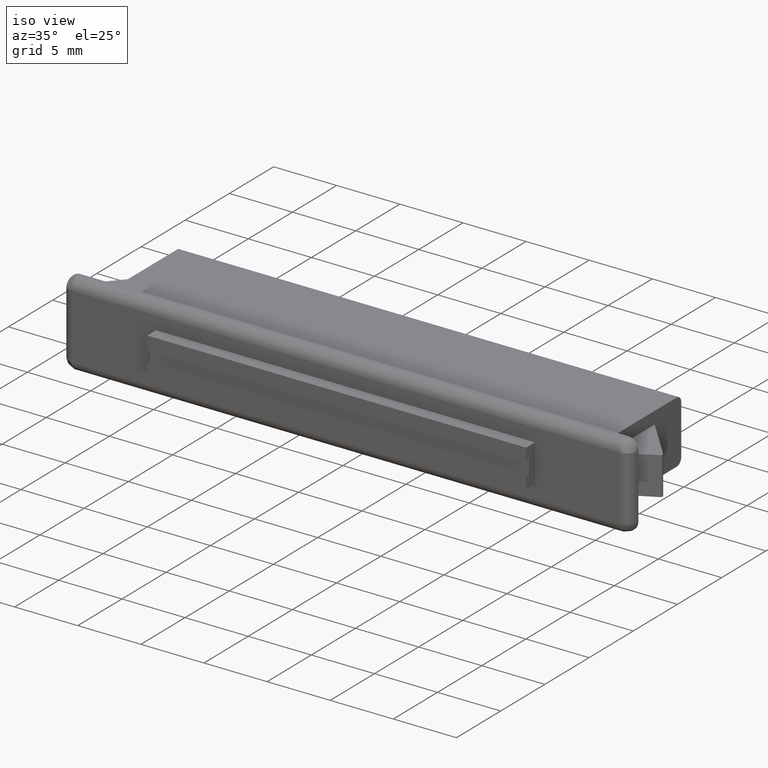
[diagram: clean part render]
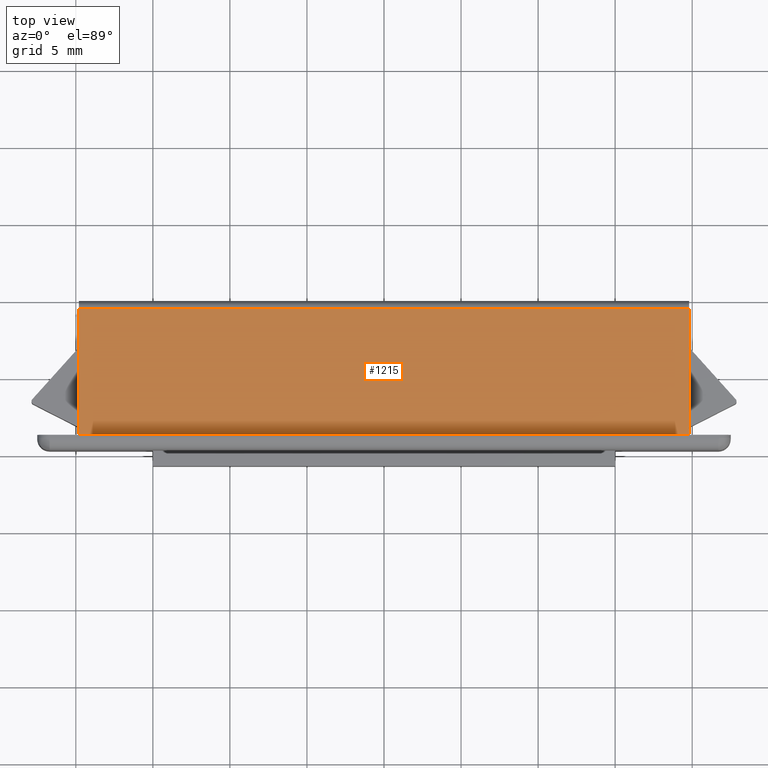
[diagram: tour spotlight — one face highlighted and labeled with its STEP entity id]
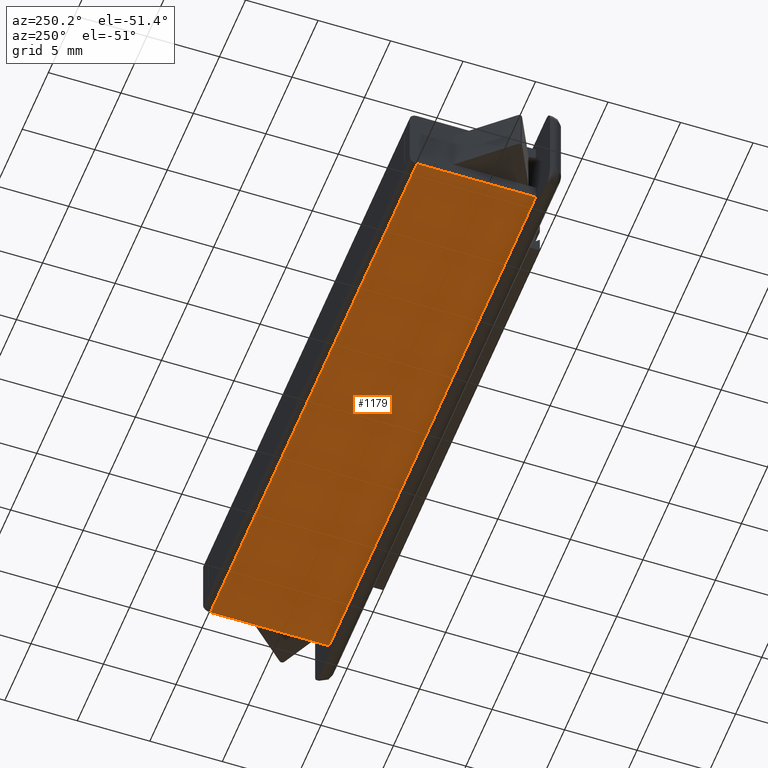
[diagram: tour spotlight — one face highlighted and labeled with its STEP entity id]
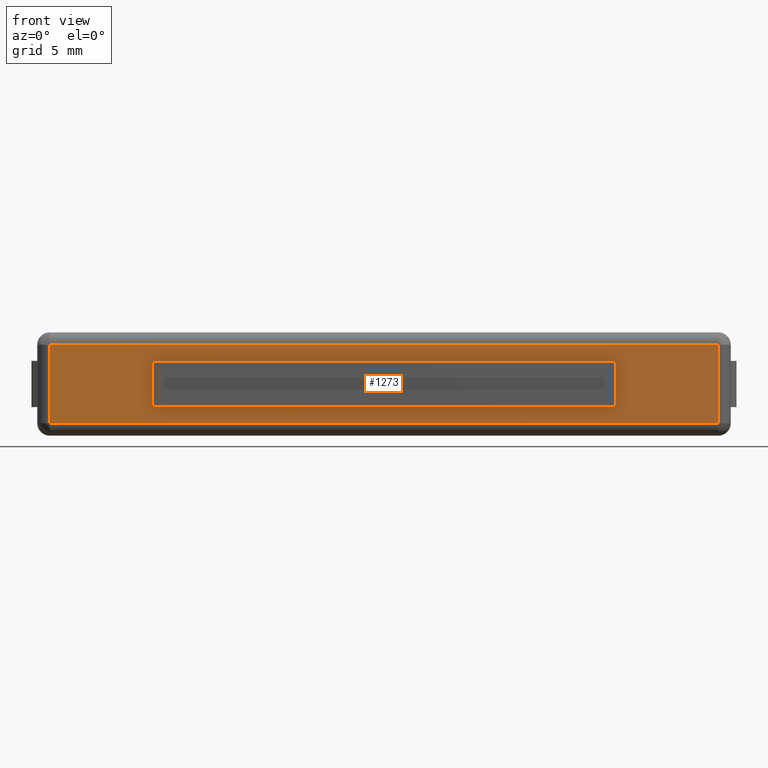
[diagram: tour spotlight — one face highlighted and labeled with its STEP entity id]
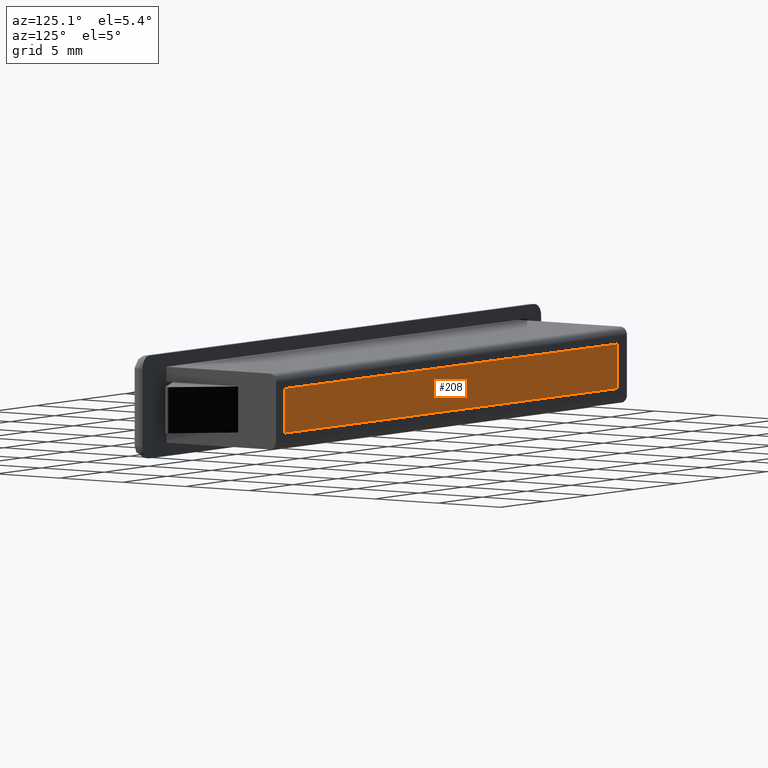
[diagram: tour spotlight — one face highlighted and labeled with its STEP entity id]
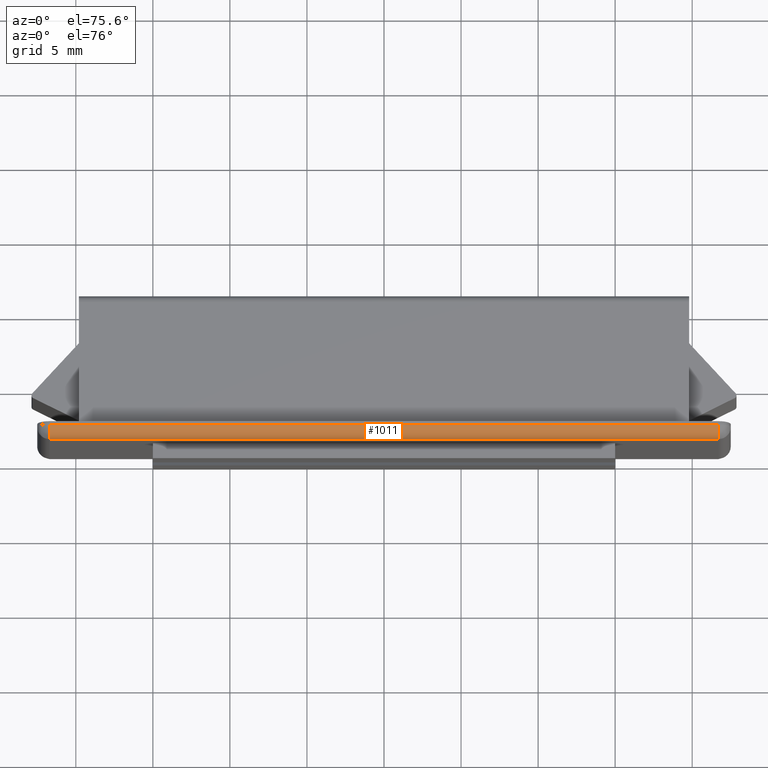
[diagram: tour spotlight — one face highlighted and labeled with its STEP entity id]
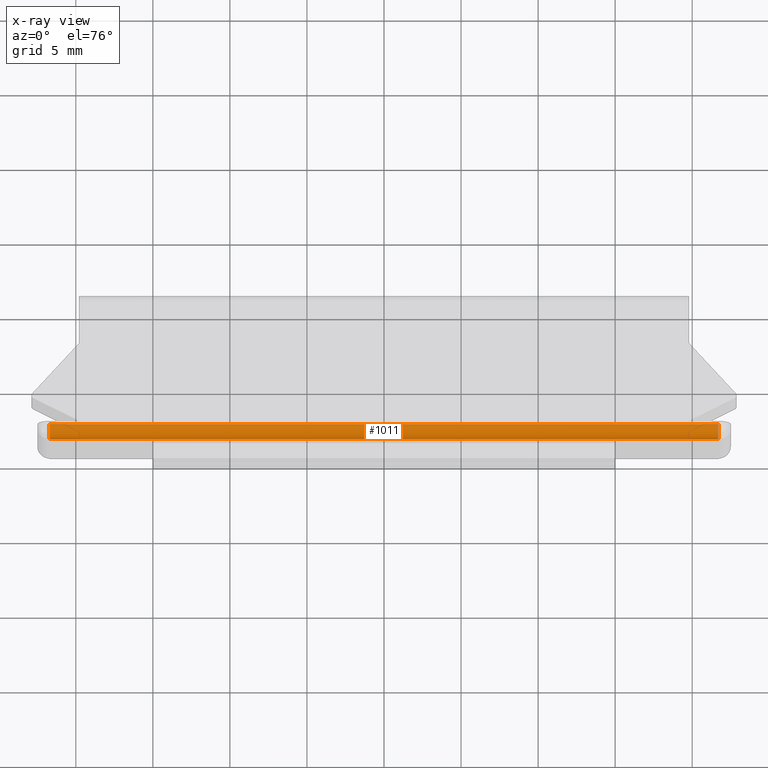
[diagram: x-ray of the same camera — body ghosted, this tour face saturated]
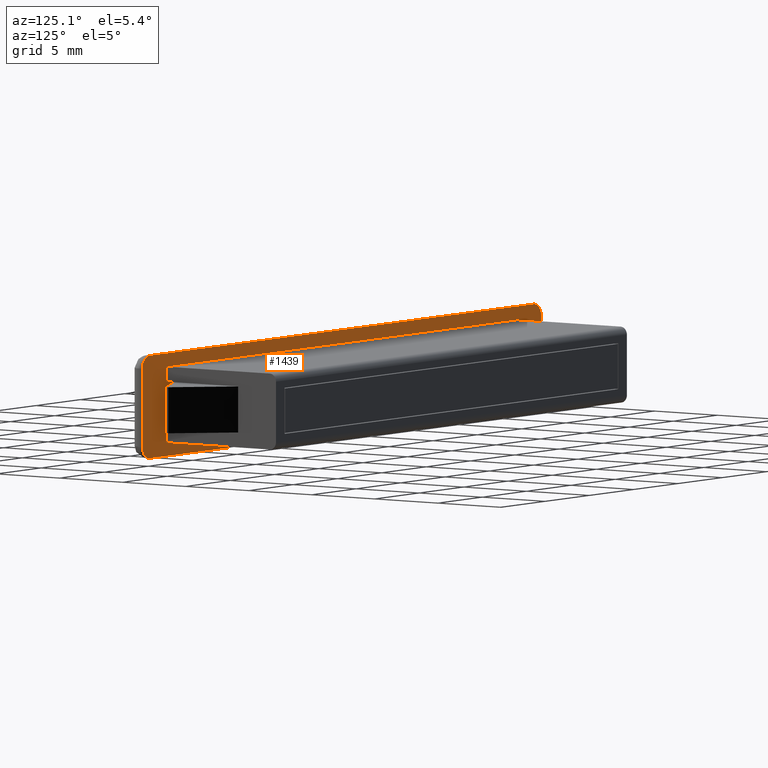
[diagram: tour spotlight — one face highlighted and labeled with its STEP entity id]
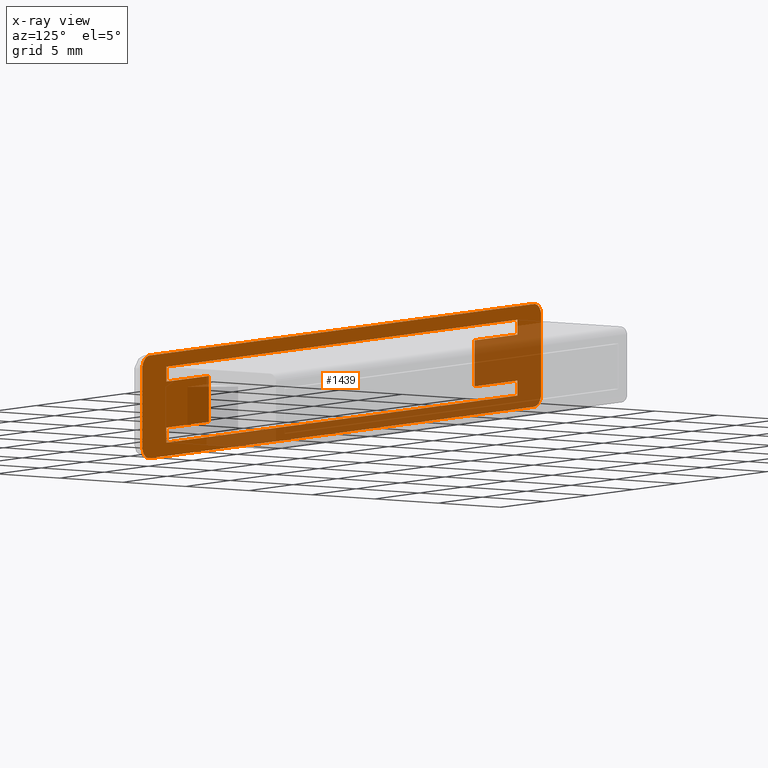
[diagram: x-ray of the same camera — body ghosted, this tour face saturated]
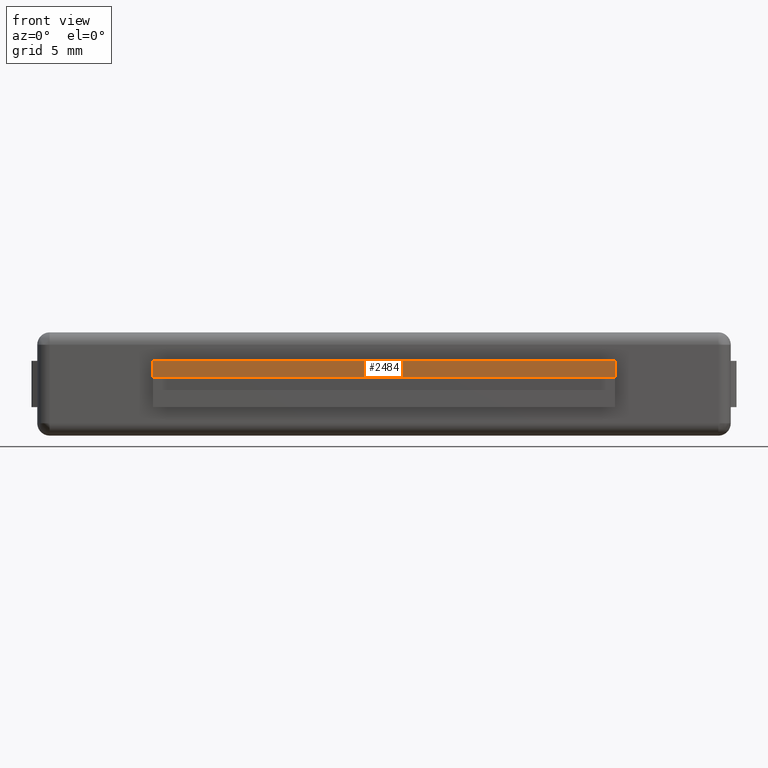
[diagram: tour spotlight — one face highlighted and labeled with its STEP entity id]
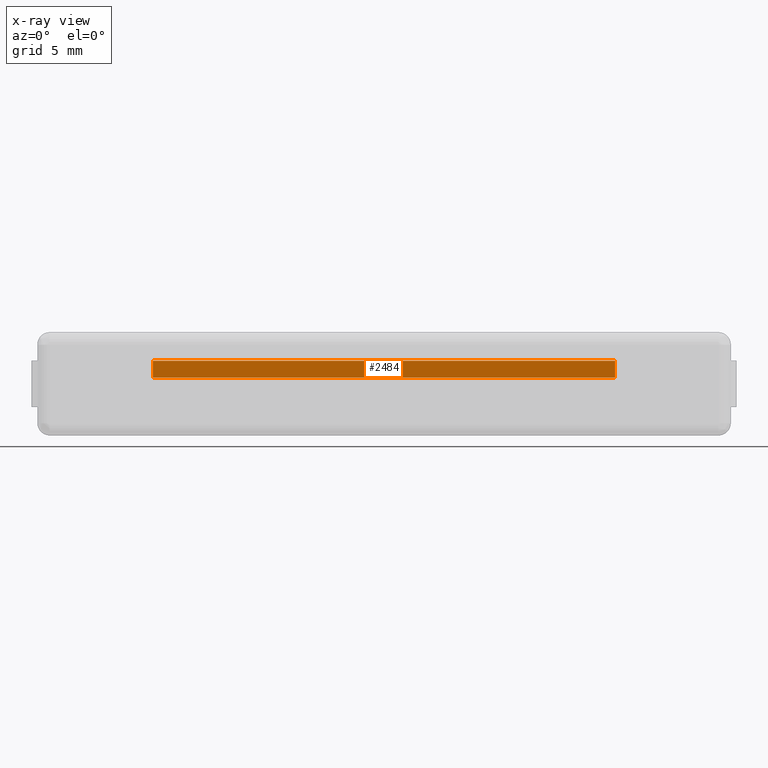
[diagram: x-ray of the same camera — body ghosted, this tour face saturated]
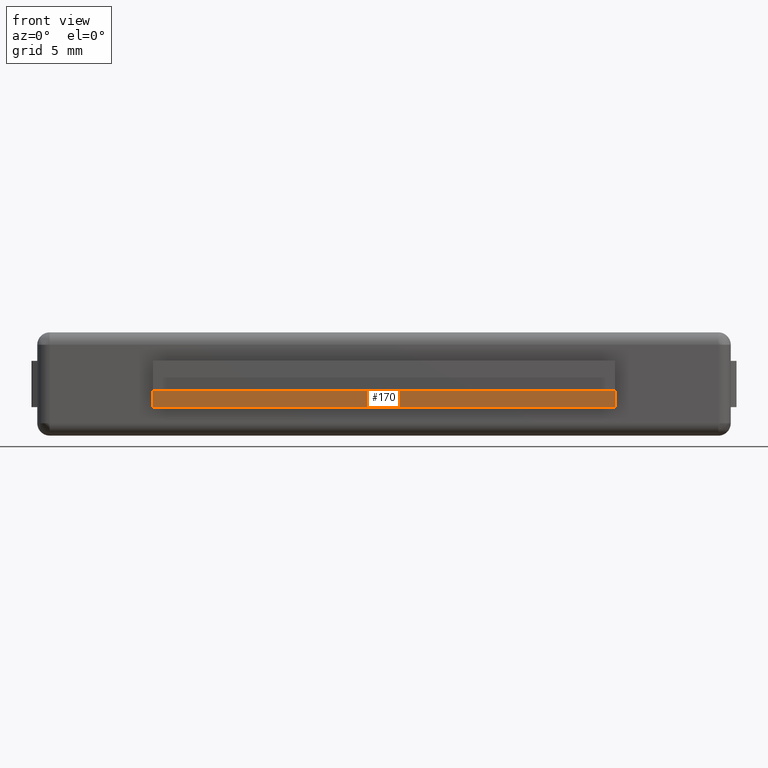
[diagram: tour spotlight — one face highlighted and labeled with its STEP entity id]
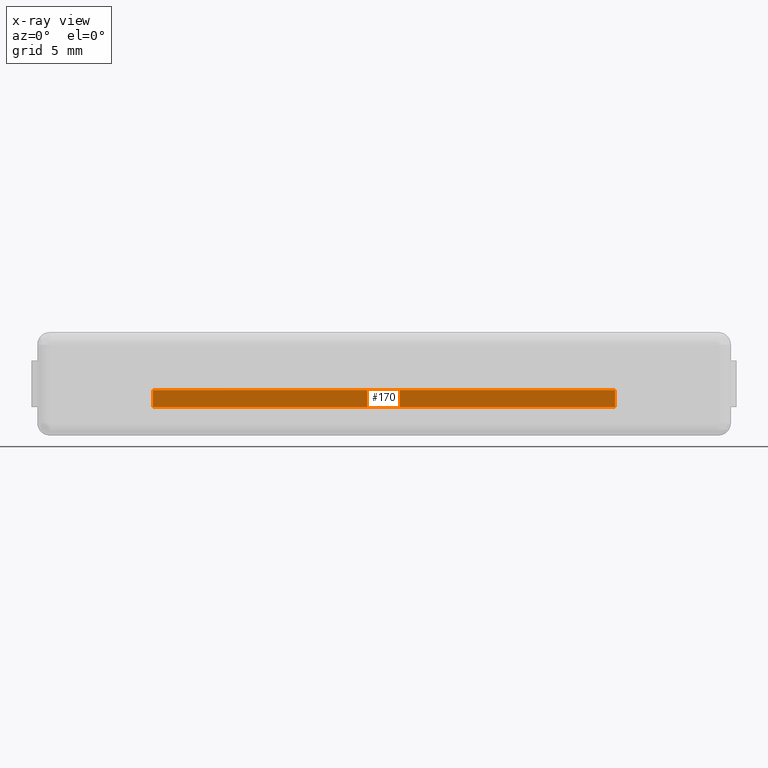
[diagram: x-ray of the same camera — body ghosted, this tour face saturated]
A machine part: a face-by-face anatomy tour. The part has 80 B-rep faces; the first image is the clean iso view, then the 8 largest visible faces are spotlighted one at a time (largest first), each with its STEP entity span.

Face 1 — top view, entity #1215. In plain terms, the highlighted face is a freeform B-spline surface patch.
Definition (entity closure, byte-faithful):
#1180=CARTESIAN_POINT('',(-21.778019923247520,-9.109589984106808,2.475000000000000));
#1181=CARTESIAN_POINT('',(21.778020985402289,-9.109589984106808,2.475000000000000));
#1182=CARTESIAN_POINT('',(-21.778019923247520,-0.090409795952053,2.475000000000000));
#1183=CARTESIAN_POINT('',(21.778020985402289,-0.090409795952053,2.475000000000000));
#1184=B_SPLINE_SURFACE_WITH_KNOTS('',1,1,((#1180,#1182),(#1181,#1183)),.UNSPECIFIED.,.F.,.F.,.U.,(2,2),(2,2),(0.0,43.556040908649813),(0.0,9.019180188154754),.UNSPECIFIED.);
#1185=CARTESIAN_POINT('',(19.800000000000001,-0.500000000000000,2.475000000000000));
#1186=VERTEX_POINT('',#1185);
#1187=CARTESIAN_POINT('',(19.800000000000001,-8.699999999999999,2.475000000000000));
#1188=VERTEX_POINT('',#1187);
#1189=CARTESIAN_POINT('',(19.800000000000001,-0.500000000000000,2.475000000000000));
#1190=CARTESIAN_POINT('',(19.800000000000001,-8.699999999999999,2.475000000000000));
#1191=QUASI_UNIFORM_CURVE('',1,(#1189,#1190),.UNSPECIFIED.,.F.,.U.);
#1192=EDGE_CURVE('',#1186,#1188,#1191,.T.);
#1193=ORIENTED_EDGE('',*,*,#1192,.F.);
#1194=CARTESIAN_POINT('',(-19.800000000000001,-0.500000000000000,2.475000000000000));
#1195=VERTEX_POINT('',#1194);
#1196=CARTESIAN_POINT('',(19.800000000000001,-0.500000000000000,2.475000000000000));
#1197=CARTESIAN_POINT('',(-19.800000000000001,-0.500000000000000,2.475000000000000));
#1198=QUASI_UNIFORM_CURVE('',1,(#1196,#1197),.UNSPECIFIED.,.F.,.U.);
#1199=EDGE_CURVE('',#1186,#1195,#1198,.T.);
#1200=ORIENTED_EDGE('',*,*,#1199,.T.);
#1201=CARTESIAN_POINT('',(-19.800000000000001,-8.699999999999999,2.475000000000000));
#1202=VERTEX_POINT('',#1201);
#1203=CARTESIAN_POINT('',(-19.800000000000001,-0.500000000000000,2.475000000000000));
#1204=CARTESIAN_POINT('',(-19.800000000000001,-8.699999999999999,2.475000000000000));
#1205=QUASI_UNIFORM_CURVE('',1,(#1203,#1204),.UNSPECIFIED.,.F.,.U.);
#1206=EDGE_CURVE('',#1195,#1202,#1205,.T.);
#1207=ORIENTED_EDGE('',*,*,#1206,.T.);
#1208=CARTESIAN_POINT('',(-19.800000000000001,-8.699999999999999,2.475000000000000));
#1209=CARTESIAN_POINT('',(19.800000000000001,-8.699999999999999,2.475000000000000));
#1210=QUASI_UNIFORM_CURVE('',1,(#1208,#1209),.UNSPECIFIED.,.F.,.U.);
#1211=EDGE_CURVE('',#1202,#1188,#1210,.T.);
#1212=ORIENTED_EDGE('',*,*,#1211,.T.);
#1213=EDGE_LOOP('',(#1193,#1200,#1207,#1212));
#1214=FACE_OUTER_BOUND('',#1213,.T.);
#1215=ADVANCED_FACE('',(#1214),#1184,.T.);

Face 2 — auxiliary view, entity #1179. In plain terms, the highlighted face is a freeform B-spline surface patch.
Definition (entity closure, byte-faithful):
#1144=CARTESIAN_POINT('',(21.778019923247520,-9.109589984106808,-2.475000000000000));
#1145=CARTESIAN_POINT('',(-21.778020985402289,-9.109589984106808,-2.475000000000000));
#1146=CARTESIAN_POINT('',(21.778019923247520,-0.090409795952053,-2.475000000000000));
#1147=CARTESIAN_POINT('',(-21.778020985402289,-0.090409795952053,-2.475000000000000));
#1148=B_SPLINE_SURFACE_WITH_KNOTS('',1,1,((#1144,#1146),(#1145,#1147)),.UNSPECIFIED.,.F.,.F.,.U.,(2,2),(2,2),(0.0,43.556040908649813),(0.0,9.019180188154754),.UNSPECIFIED.);
#1149=CARTESIAN_POINT('',(-19.800000000000001,-8.699999999999999,-2.475000000000000));
#1150=VERTEX_POINT('',#1149);
#1151=CARTESIAN_POINT('',(-19.800000000000001,-0.500000000000000,-2.475000000000000));
#1152=VERTEX_POINT('',#1151);
#1153=CARTESIAN_POINT('',(-19.800000000000001,-8.699999999999999,-2.475000000000000));
#1154=CARTESIAN_POINT('',(-19.800000000000001,-0.500000000000000,-2.475000000000000));
#1155=QUASI_UNIFORM_CURVE('',1,(#1153,#1154),.UNSPECIFIED.,.F.,.U.);
#1156=EDGE_CURVE('',#1150,#1152,#1155,.T.);
#1157=ORIENTED_EDGE('',*,*,#1156,.T.);
#1158=CARTESIAN_POINT('',(19.800000000000001,-0.500000000000000,-2.475000000000000));
#1159=VERTEX_POINT('',#1158);
#1160=CARTESIAN_POINT('',(-19.800000000000001,-0.500000000000000,-2.475000000000000));
#1161=CARTESIAN_POINT('',(19.800000000000001,-0.500000000000000,-2.475000000000000));
#1162=QUASI_UNIFORM_CURVE('',1,(#1160,#1161),.UNSPECIFIED.,.F.,.U.);
#1163=EDGE_CURVE('',#1152,#1159,#1162,.T.);
#1164=ORIENTED_EDGE('',*,*,#1163,.T.);
#1165=CARTESIAN_POINT('',(19.800000000000001,-8.699999999999999,-2.475000000000000));
#1166=VERTEX_POINT('',#1165);
#1167=CARTESIAN_POINT('',(19.800000000000001,-8.699999999999999,-2.475000000000000));
#1168=CARTESIAN_POINT('',(19.800000000000001,-0.500000000000000,-2.475000000000000));
#1169=QUASI_UNIFORM_CURVE('',1,(#1167,#1168),.UNSPECIFIED.,.F.,.U.);
#1170=EDGE_CURVE('',#1166,#1159,#1169,.T.);
#1171=ORIENTED_EDGE('',*,*,#1170,.F.);
#1172=CARTESIAN_POINT('',(-19.800000000000001,-8.699999999999999,-2.475000000000000));
#1173=CARTESIAN_POINT('',(19.800000000000001,-8.699999999999999,-2.475000000000000));
#1174=QUASI_UNIFORM_CURVE('',1,(#1172,#1173),.UNSPECIFIED.,.F.,.U.);
#1175=EDGE_CURVE('',#1150,#1166,#1174,.T.);
#1176=ORIENTED_EDGE('',*,*,#1175,.F.);
#1177=EDGE_LOOP('',(#1157,#1164,#1171,#1176));
#1178=FACE_OUTER_BOUND('',#1177,.T.);
#1179=ADVANCED_FACE('',(#1178),#1148,.T.);

Face 3 — front view, entity #1273. In plain terms, the highlighted face is a freeform B-spline surface patch.
Definition (entity closure, byte-faithful):
#304=CARTESIAN_POINT('',(15.0,-9.700000000088689,-0.699999999999989));
#305=VERTEX_POINT('',#304);
#318=CARTESIAN_POINT('',(-15.0,-9.700000000088689,-0.699999999999989));
#319=VERTEX_POINT('',#318);
#410=CARTESIAN_POINT('',(15.0,-9.700000000088640,1.500000000000000));
#411=VERTEX_POINT('',#410);
#424=CARTESIAN_POINT('',(15.0,-9.700000000088689,0.700000000000017));
#425=VERTEX_POINT('',#424);
#431=CARTESIAN_POINT('',(15.0,-9.700000000088689,0.700000000000017));
#432=CARTESIAN_POINT('',(15.0,-9.700000000088640,1.500000000000000));
#433=QUASI_UNIFORM_CURVE('',1,(#431,#432),.UNSPECIFIED.,.F.,.U.);
#434=EDGE_CURVE('',#425,#411,#433,.T.);
#645=CARTESIAN_POINT('',(-21.699999999999999,-9.700000000088689,-2.550000000000110));
#646=VERTEX_POINT('',#645);
#693=CARTESIAN_POINT('',(21.699999999999999,-9.700000000088689,-2.550000000000110));
#694=VERTEX_POINT('',#693);
#708=CARTESIAN_POINT('',(-21.699999999999999,-9.700000000088689,-2.550000000000110));
#709=CARTESIAN_POINT('',(21.699999999999999,-9.700000000088689,-2.550000000000110));
#710=QUASI_UNIFORM_CURVE('',1,(#708,#709),.UNSPECIFIED.,.F.,.U.);
#711=EDGE_CURVE('',#646,#694,#710,.T.);
#736=CARTESIAN_POINT('',(-21.699999999999999,-9.700000000088689,2.549999999999880));
#737=VERTEX_POINT('',#736);
#759=CARTESIAN_POINT('',(-21.699999999999999,-9.700000000088689,2.549999999999880));
#760=CARTESIAN_POINT('',(-21.699999999999999,-9.700000000088689,-2.550000000000110));
#761=QUASI_UNIFORM_CURVE('',1,(#759,#760),.UNSPECIFIED.,.F.,.U.);
#762=EDGE_CURVE('',#737,#646,#761,.T.);
#940=CARTESIAN_POINT('',(21.699999999999999,-9.700000000088689,2.549999999999880));
#941=VERTEX_POINT('',#940);
#955=CARTESIAN_POINT('',(21.699999999999999,-9.700000000088689,-2.550000000000110));
#956=CARTESIAN_POINT('',(21.699999999999999,-9.700000000088689,2.549999999999880));
#957=QUASI_UNIFORM_CURVE('',1,(#955,#956),.UNSPECIFIED.,.F.,.U.);
#958=EDGE_CURVE('',#694,#941,#957,.T.);
#1004=CARTESIAN_POINT('',(21.699999999999999,-9.700000000088689,2.549999999999880));
#1005=CARTESIAN_POINT('',(-21.699999999999999,-9.700000000088689,2.549999999999880));
#1006=QUASI_UNIFORM_CURVE('',1,(#1004,#1005),.UNSPECIFIED.,.F.,.U.);
#1007=EDGE_CURVE('',#941,#737,#1006,.T.);
#1216=CARTESIAN_POINT('',(-23.867829915882378,-9.700000000088689,2.804744990115090));
#1217=CARTESIAN_POINT('',(23.867831079961089,-9.700000000088689,2.804744990115090));
#1218=CARTESIAN_POINT('',(-23.867829915882378,-9.700000000088689,-2.804745126907981));
#1219=CARTESIAN_POINT('',(23.867831079961089,-9.700000000088689,-2.804745126907981));
#1220=B_SPLINE_SURFACE_WITH_KNOTS('',1,1,((#1216,#1218),(#1217,#1219)),.UNSPECIFIED.,.F.,.F.,.U.,(2,2),(2,2),(0.0,47.735660995843482),(0.0,5.609490117023071),.UNSPECIFIED.);
#1221=ORIENTED_EDGE('',*,*,#762,.T.);
#1222=ORIENTED_EDGE('',*,*,#711,.T.);
#1223=ORIENTED_EDGE('',*,*,#958,.T.);
#1224=ORIENTED_EDGE('',*,*,#1007,.T.);
#1225=EDGE_LOOP('',(#1221,#1222,#1223,#1224));
#1226=FACE_OUTER_BOUND('',#1225,.T.);
#1227=CARTESIAN_POINT('',(15.0,-9.700000000088640,-1.500000000000000));
#1228=VERTEX_POINT('',#1227);
#1229=CARTESIAN_POINT('',(15.0,-9.700000000088640,-1.500000000000000));
#1230=CARTESIAN_POINT('',(15.0,-9.700000000088689,-0.699999999999989));
#1231=QUASI_UNIFORM_CURVE('',1,(#1229,#1230),.UNSPECIFIED.,.F.,.U.);
#1232=EDGE_CURVE('',#1228,#305,#1231,.T.);
#1233=ORIENTED_EDGE('',*,*,#1232,.F.);
#1234=CARTESIAN_POINT('',(-15.0,-9.700000000088689,-1.500000000000000));
#1235=VERTEX_POINT('',#1234);
#1236=CARTESIAN_POINT('',(-15.0,-9.700000000088689,-1.500000000000000));
#1237=CARTESIAN_POINT('',(15.0,-9.700000000088640,-1.500000000000000));
#1238=QUASI_UNIFORM_CURVE('',1,(#1236,#1237),.UNSPECIFIED.,.F.,.U.);
#1239=EDGE_CURVE('',#1235,#1228,#1238,.T.);
#1240=ORIENTED_EDGE('',*,*,#1239,.F.);
#1241=CARTESIAN_POINT('',(-15.0,-9.700000000088689,-0.699999999999989));
#1242=CARTESIAN_POINT('',(-15.0,-9.700000000088689,-1.500000000000000));
#1243=QUASI_UNIFORM_CURVE('',1,(#1241,#1242),.UNSPECIFIED.,.F.,.U.);
#1244=EDGE_CURVE('',#319,#1235,#1243,.T.);
#1245=ORIENTED_EDGE('',*,*,#1244,.F.);
#1246=CARTESIAN_POINT('',(-15.0,-9.700000000088689,0.700000000000017));
#1247=VERTEX_POINT('',#1246);
#1248=CARTESIAN_POINT('',(-15.0,-9.700000000088689,-0.699999999999989));
#1249=CARTESIAN_POINT('',(-15.0,-9.700000000088689,0.700000000000017));
#1250=QUASI_UNIFORM_CURVE('',1,(#1248,#1249),.UNSPECIFIED.,.F.,.U.);
#1251=EDGE_CURVE('',#319,#1247,#1250,.T.);
#1252=ORIENTED_EDGE('',*,*,#1251,.T.);
#1253=CARTESIAN_POINT('',(-15.0,-9.700000000088640,1.500000000000000));
#1254=VERTEX_POINT('',#1253);
#1255=CARTESIAN_POINT('',(-15.0,-9.700000000088640,1.500000000000000));
#1256=CARTESIAN_POINT('',(-15.0,-9.700000000088689,0.700000000000017));
#1257=QUASI_UNIFORM_CURVE('',1,(#1255,#1256),.UNSPECIFIED.,.F.,.U.);
#1258=EDGE_CURVE('',#1254,#1247,#1257,.T.);
#1259=ORIENTED_EDGE('',*,*,#1258,.F.);
#1260=CARTESIAN_POINT('',(15.0,-9.700000000088640,1.500000000000000));
#1261=CARTESIAN_POINT('',(-15.0,-9.700000000088640,1.500000000000000));
#1262=QUASI_UNIFORM_CURVE('',1,(#1260,#1261),.UNSPECIFIED.,.F.,.U.);
#1263=EDGE_CURVE('',#411,#1254,#1262,.T.);
#1264=ORIENTED_EDGE('',*,*,#1263,.F.);
#1265=ORIENTED_EDGE('',*,*,#434,.F.);
#1266=CARTESIAN_POINT('',(15.0,-9.700000000088689,-0.699999999999989));
#1267=CARTESIAN_POINT('',(15.0,-9.700000000088689,0.700000000000017));
#1268=QUASI_UNIFORM_CURVE('',1,(#1266,#1267),.UNSPECIFIED.,.F.,.U.);
#1269=EDGE_CURVE('',#305,#425,#1268,.T.);
#1270=ORIENTED_EDGE('',*,*,#1269,.F.);
#1271=EDGE_LOOP('',(#1233,#1240,#1245,#1252,#1259,#1264,#1265,#1270));
#1272=FACE_BOUND('',#1271,.T.);
#1273=ADVANCED_FACE('',(#1226,#1272),#1220,.F.);

Face 4 — auxiliary view, entity #208. In plain terms, the highlighted face is a freeform B-spline surface patch.
Definition (entity closure, byte-faithful):
#173=CARTESIAN_POINT('',(-20.650622427220821,0.0,-1.594854994379238));
#174=CARTESIAN_POINT('',(-20.650622427220821,0.0,1.594855072163322));
#175=CARTESIAN_POINT('',(20.650623434390301,0.0,-1.594854994379238));
#176=CARTESIAN_POINT('',(20.650623434390301,0.0,1.594855072163322));
#177=B_SPLINE_SURFACE_WITH_KNOTS('',1,1,((#173,#175),(#174,#176)),.UNSPECIFIED.,.F.,.F.,.U.,(2,2),(2,2),(0.0,3.189710066542560),(0.0,41.301245861611122),.UNSPECIFIED.);
#178=CARTESIAN_POINT('',(18.774999999999999,0.0,1.450000000000014));
#179=VERTEX_POINT('',#178);
#180=CARTESIAN_POINT('',(-18.774999999999999,0.0,1.450000000000022));
#181=VERTEX_POINT('',#180);
#182=CARTESIAN_POINT('',(18.774999999999999,0.0,1.450000000000014));
#183=CARTESIAN_POINT('',(-18.774999999999999,0.0,1.450000000000022));
#184=QUASI_UNIFORM_CURVE('',1,(#182,#183),.UNSPECIFIED.,.F.,.U.);
#185=EDGE_CURVE('',#179,#181,#184,.T.);
#186=ORIENTED_EDGE('',*,*,#185,.F.);
#187=CARTESIAN_POINT('',(18.774999999999999,0.0,-1.450000000000000));
#188=VERTEX_POINT('',#187);
#189=CARTESIAN_POINT('',(18.774999999999999,0.0,-1.450000000000000));
#190=CARTESIAN_POINT('',(18.774999999999999,0.0,1.450000000000014));
#191=QUASI_UNIFORM_CURVE('',1,(#189,#190),.UNSPECIFIED.,.F.,.U.);
#192=EDGE_CURVE('',#188,#179,#191,.T.);
#193=ORIENTED_EDGE('',*,*,#192,.F.);
#194=CARTESIAN_POINT('',(-18.774999999999999,0.0,-1.450000000000000));
#195=VERTEX_POINT('',#194);
#196=CARTESIAN_POINT('',(-18.774999999999999,0.0,-1.450000000000000));
#197=CARTESIAN_POINT('',(18.774999999999999,0.0,-1.450000000000000));
#198=QUASI_UNIFORM_CURVE('',1,(#196,#197),.UNSPECIFIED.,.F.,.U.);
#199=EDGE_CURVE('',#195,#188,#198,.T.);
#200=ORIENTED_EDGE('',*,*,#199,.F.);
#201=CARTESIAN_POINT('',(-18.774999999999999,0.0,1.450000000000022));
#202=CARTESIAN_POINT('',(-18.774999999999999,0.0,-1.450000000000000));
#203=QUASI_UNIFORM_CURVE('',1,(#201,#202),.UNSPECIFIED.,.F.,.U.);
#204=EDGE_CURVE('',#181,#195,#203,.T.);
#205=ORIENTED_EDGE('',*,*,#204,.F.);
#206=EDGE_LOOP('',(#186,#193,#200,#205));
#207=FACE_OUTER_BOUND('',#206,.T.);
#208=ADVANCED_FACE('',(#207),#177,.T.);

Face 5 — auxiliary view, entity #1011. An x-ray twin of the same camera follows (body ghosted, this face saturated) — the face is partly hidden behind the body. In plain terms, the highlighted face is a freeform B-spline surface patch.
Definition (entity closure, byte-faithful):
#736=CARTESIAN_POINT('',(-21.699999999999999,-9.700000000088689,2.549999999999880));
#737=VERTEX_POINT('',#736);
#847=CARTESIAN_POINT('',(-21.699999999999999,-8.900000000088689,3.349999999999880));
#848=VERTEX_POINT('',#847);
#849=CARTESIAN_POINT('',(-21.699999999999999,-9.700000000088689,2.549999999999880));
#850=CARTESIAN_POINT('',(-21.699999999999996,-9.700000000088689,3.349999999999881));
#851=CARTESIAN_POINT('',(-21.699999999999999,-8.900000000088689,3.349999999999880));
#859=(BOUNDED_CURVE()B_SPLINE_CURVE(2,(#849,#850,#851),.UNSPECIFIED.,.F.,.U.)CURVE()GEOMETRIC_REPRESENTATION_ITEM()QUASI_UNIFORM_CURVE()RATIONAL_B_SPLINE_CURVE((1.0,0.707106781186548,1.0))REPRESENTATION_ITEM(''));
#860=EDGE_CURVE('',#737,#848,#859,.T.);
#940=CARTESIAN_POINT('',(21.699999999999999,-9.700000000088689,2.549999999999880));
#941=VERTEX_POINT('',#940);
#969=CARTESIAN_POINT('',(-22.785000000000000,-9.699725860069133,2.529058441353581));
#970=CARTESIAN_POINT('',(22.812125000000009,-9.699725860069133,2.529058441353581));
#971=CARTESIAN_POINT('',(-22.785000000000004,-9.722793808221695,3.409987840443655));
#972=CARTESIAN_POINT('',(22.812125000000002,-9.722793808221695,3.409987840443655));
#973=CARTESIAN_POINT('',(-22.785000000000014,-8.843743939587903,3.348019583504528));
#974=CARTESIAN_POINT('',(22.812125000000009,-8.843743939587903,3.348019583504528));
#982=(BOUNDED_SURFACE()B_SPLINE_SURFACE(1,2,((#969,#971,#973),(#970,#972,#974)),.UNSPECIFIED.,.F.,.F.,.U.)B_SPLINE_SURFACE_WITH_KNOTS((2,2),(3,3),(0.0,45.597125000000020),(0.0,0.994518632334191),.UNSPECIFIED.)GEOMETRIC_REPRESENTATION_ITEM()RATIONAL_B_SPLINE_SURFACE(((1.0,0.670944223154768,0.996392648609106),(1.0,0.670944223154768,0.996392648609106)))REPRESENTATION_ITEM('')SURFACE());
#983=CARTESIAN_POINT('',(21.699999999999999,-8.900000000088689,3.349999999999880));
#984=VERTEX_POINT('',#983);
#985=CARTESIAN_POINT('',(21.699999999999999,-9.700000000088689,2.549999999999880));
#986=CARTESIAN_POINT('',(21.699999999999996,-9.700000000088689,3.349999999999881));
#987=CARTESIAN_POINT('',(21.699999999999999,-8.900000000088689,3.349999999999880));
#995=(BOUNDED_CURVE()B_SPLINE_CURVE(2,(#985,#986,#987),.UNSPECIFIED.,.F.,.U.)CURVE()GEOMETRIC_REPRESENTATION_ITEM()QUASI_UNIFORM_CURVE()RATIONAL_B_SPLINE_CURVE((1.0,0.707106781186548,1.0))REPRESENTATION_ITEM(''));
#996=EDGE_CURVE('',#941,#984,#995,.T.);
#997=ORIENTED_EDGE('',*,*,#996,.T.);
#998=CARTESIAN_POINT('',(-21.699999999999999,-8.900000000088689,3.349999999999880));
#999=CARTESIAN_POINT('',(21.699999999999999,-8.900000000088689,3.349999999999880));
#1000=QUASI_UNIFORM_CURVE('',1,(#998,#999),.UNSPECIFIED.,.F.,.U.);
#1001=EDGE_CURVE('',#848,#984,#1000,.T.);
#1002=ORIENTED_EDGE('',*,*,#1001,.F.);
#1003=ORIENTED_EDGE('',*,*,#860,.F.);
#1004=CARTESIAN_POINT('',(21.699999999999999,-9.700000000088689,2.549999999999880));
#1005=CARTESIAN_POINT('',(-21.699999999999999,-9.700000000088689,2.549999999999880));
#1006=QUASI_UNIFORM_CURVE('',1,(#1004,#1005),.UNSPECIFIED.,.F.,.U.);
#1007=EDGE_CURVE('',#941,#737,#1006,.T.);
#1008=ORIENTED_EDGE('',*,*,#1007,.F.);
#1009=EDGE_LOOP('',(#997,#1002,#1003,#1008));
#1010=FACE_OUTER_BOUND('',#1009,.T.);
#1011=ADVANCED_FACE('',(#1010),#982,.T.);

Face 6 — auxiliary view, entity #1439. An x-ray twin of the same camera follows (body ghosted, this face saturated) — the face is partly hidden behind the body. In plain terms, the highlighted face is a freeform B-spline surface patch.
Definition (entity closure, byte-faithful):
#325=CARTESIAN_POINT('',(-14.999999999966199,-8.699999999999999,-0.699999999999989));
#326=VERTEX_POINT('',#325);
#360=CARTESIAN_POINT('',(15.0,-8.699999999999999,-0.699999999999989));
#361=VERTEX_POINT('',#360);
#408=CARTESIAN_POINT('',(14.999999999966141,-8.699999999999999,1.500000000000000));
#409=VERTEX_POINT('',#408);
#417=CARTESIAN_POINT('',(14.999999999966199,-8.699999999999999,0.700000000000017));
#418=VERTEX_POINT('',#417);
#419=CARTESIAN_POINT('',(14.999999999966141,-8.699999999999999,1.500000000000000));
#420=CARTESIAN_POINT('',(14.999999999966199,-8.699999999999999,0.700000000000017));
#421=QUASI_UNIFORM_CURVE('',1,(#419,#420),.UNSPECIFIED.,.F.,.U.);
#422=EDGE_CURVE('',#409,#418,#421,.T.);
#574=CARTESIAN_POINT('',(-21.699999999999999,-8.699999999999999,-3.350000000000110));
#575=VERTEX_POINT('',#574);
#576=CARTESIAN_POINT('',(-22.500000000000000,-8.699999999999999,-2.550000000000110));
#577=VERTEX_POINT('',#576);
#578=CARTESIAN_POINT('',(-21.699999999999999,-8.699999999999999,-3.350000000000110));
#579=CARTESIAN_POINT('',(-22.500000000000000,-8.699999999999999,-3.350000000000110));
#580=CARTESIAN_POINT('',(-22.500000000000000,-8.699999999999999,-2.550000000000110));
#588=(BOUNDED_CURVE()B_SPLINE_CURVE(2,(#578,#579,#580),.UNSPECIFIED.,.F.,.U.)CURVE()GEOMETRIC_REPRESENTATION_ITEM()QUASI_UNIFORM_CURVE()RATIONAL_B_SPLINE_CURVE((1.0,0.707106781186548,1.0))REPRESENTATION_ITEM(''));
#589=EDGE_CURVE('',#575,#577,#588,.T.);
#893=CARTESIAN_POINT('',(22.500000000000000,-8.699999999999999,-2.550000000000110));
#894=VERTEX_POINT('',#893);
#895=CARTESIAN_POINT('',(21.699999999999999,-8.699999999999999,-3.350000000000110));
#896=VERTEX_POINT('',#895);
#897=CARTESIAN_POINT('',(22.500000000000000,-8.699999999999999,-2.550000000000110));
#898=CARTESIAN_POINT('',(22.500000000000000,-8.699999999999999,-3.350000000000110));
#899=CARTESIAN_POINT('',(21.699999999999999,-8.699999999999999,-3.350000000000110));
#907=(BOUNDED_CURVE()B_SPLINE_CURVE(2,(#897,#898,#899),.UNSPECIFIED.,.F.,.U.)CURVE()GEOMETRIC_REPRESENTATION_ITEM()QUASI_UNIFORM_CURVE()RATIONAL_B_SPLINE_CURVE((1.0,0.707106781186548,1.0))REPRESENTATION_ITEM(''));
#908=EDGE_CURVE('',#894,#896,#907,.T.);
#1026=CARTESIAN_POINT('',(-22.500000000000000,-8.699999999999999,2.549999999999880));
#1027=VERTEX_POINT('',#1026);
#1028=CARTESIAN_POINT('',(-21.699999999999999,-8.699999999999999,3.349999999999880));
#1029=VERTEX_POINT('',#1028);
#1030=CARTESIAN_POINT('',(-22.500000000000000,-8.699999999999999,2.549999999999880));
#1031=CARTESIAN_POINT('',(-22.500000000000000,-8.699999999999999,3.349999999999881));
#1032=CARTESIAN_POINT('',(-21.699999999999999,-8.699999999999999,3.349999999999880));
#1040=(BOUNDED_CURVE()B_SPLINE_CURVE(2,(#1030,#1031,#1032),.UNSPECIFIED.,.F.,.U.)CURVE()GEOMETRIC_REPRESENTATION_ITEM()QUASI_UNIFORM_CURVE()RATIONAL_B_SPLINE_CURVE((1.0,0.707106781186548,1.0))REPRESENTATION_ITEM(''));
#1041=EDGE_CURVE('',#1027,#1029,#1040,.T.);
#1114=CARTESIAN_POINT('',(22.500000000000000,-8.699999999999999,2.549999999999880));
#1115=VERTEX_POINT('',#1114);
#1121=CARTESIAN_POINT('',(21.699999999999999,-8.699999999999999,3.349999999999880));
#1122=VERTEX_POINT('',#1121);
#1123=CARTESIAN_POINT('',(21.699999999999999,-8.699999999999999,3.349999999999880));
#1124=CARTESIAN_POINT('',(22.500000000000000,-8.699999999999999,3.349999999999881));
#1125=CARTESIAN_POINT('',(22.500000000000000,-8.699999999999999,2.549999999999880));
#1133=(BOUNDED_CURVE()B_SPLINE_CURVE(2,(#1123,#1124,#1125),.UNSPECIFIED.,.F.,.U.)CURVE()GEOMETRIC_REPRESENTATION_ITEM()QUASI_UNIFORM_CURVE()RATIONAL_B_SPLINE_CURVE((1.0,0.707106781186548,1.0))REPRESENTATION_ITEM(''));
#1134=EDGE_CURVE('',#1122,#1115,#1133,.T.);
#1149=CARTESIAN_POINT('',(-19.800000000000001,-8.699999999999999,-2.475000000000000));
#1150=VERTEX_POINT('',#1149);
#1165=CARTESIAN_POINT('',(19.800000000000001,-8.699999999999999,-2.475000000000000));
#1166=VERTEX_POINT('',#1165);
#1172=CARTESIAN_POINT('',(-19.800000000000001,-8.699999999999999,-2.475000000000000));
#1173=CARTESIAN_POINT('',(19.800000000000001,-8.699999999999999,-2.475000000000000));
#1174=QUASI_UNIFORM_CURVE('',1,(#1172,#1173),.UNSPECIFIED.,.F.,.U.);
#1175=EDGE_CURVE('',#1150,#1166,#1174,.T.);
#1187=CARTESIAN_POINT('',(19.800000000000001,-8.699999999999999,2.475000000000000));
#1188=VERTEX_POINT('',#1187);
#1201=CARTESIAN_POINT('',(-19.800000000000001,-8.699999999999999,2.475000000000000));
#1202=VERTEX_POINT('',#1201);
#1208=CARTESIAN_POINT('',(-19.800000000000001,-8.699999999999999,2.475000000000000));
#1209=CARTESIAN_POINT('',(19.800000000000001,-8.699999999999999,2.475000000000000));
#1210=QUASI_UNIFORM_CURVE('',1,(#1208,#1209),.UNSPECIFIED.,.F.,.U.);
#1211=EDGE_CURVE('',#1202,#1188,#1210,.T.);
#1281=CARTESIAN_POINT('',(-21.699999999999999,-8.699999999999999,-3.350000000000110));
#1282=CARTESIAN_POINT('',(21.699999999999999,-8.699999999999999,-3.350000000000110));
#1283=QUASI_UNIFORM_CURVE('',1,(#1281,#1282),.UNSPECIFIED.,.F.,.U.);
#1284=EDGE_CURVE('',#575,#896,#1283,.T.);
#1295=CARTESIAN_POINT('',(-22.500000000000000,-8.699999999999999,2.549999999999880));
#1296=CARTESIAN_POINT('',(-22.500000000000000,-8.699999999999999,-2.550000000000110));
#1297=QUASI_UNIFORM_CURVE('',1,(#1295,#1296),.UNSPECIFIED.,.F.,.U.);
#1298=EDGE_CURVE('',#1027,#577,#1297,.T.);
#1313=CARTESIAN_POINT('',(21.699999999999999,-8.699999999999999,3.349999999999880));
#1314=CARTESIAN_POINT('',(-21.699999999999999,-8.699999999999999,3.349999999999880));
#1315=QUASI_UNIFORM_CURVE('',1,(#1313,#1314),.UNSPECIFIED.,.F.,.U.);
#1316=EDGE_CURVE('',#1122,#1029,#1315,.T.);
#1329=CARTESIAN_POINT('',(22.500000000000000,-8.699999999999999,-2.550000000000110));
#1330=CARTESIAN_POINT('',(22.500000000000000,-8.699999999999999,2.549999999999880));
#1331=QUASI_UNIFORM_CURVE('',1,(#1329,#1330),.UNSPECIFIED.,.F.,.U.);
#1332=EDGE_CURVE('',#894,#1115,#1331,.T.);
#1338=CARTESIAN_POINT('',(-24.747749912781270,-8.699999999999999,3.684664987013980));
#1339=CARTESIAN_POINT('',(24.747751119775330,-8.699999999999999,3.684664987013980));
#1340=CARTESIAN_POINT('',(-24.747749912781270,-8.699999999999999,-3.684665166722214));
#1341=CARTESIAN_POINT('',(24.747751119775330,-8.699999999999999,-3.684665166722214));
#1342=B_SPLINE_SURFACE_WITH_KNOTS('',1,1,((#1338,#1340),(#1339,#1341)),.UNSPECIFIED.,.F.,.F.,.U.,(2,2),(2,2),(0.0,49.495501032556589),(0.0,7.369330153736193),.UNSPECIFIED.);
#1343=ORIENTED_EDGE('',*,*,#1284,.F.);
#1344=ORIENTED_EDGE('',*,*,#589,.T.);
#1345=ORIENTED_EDGE('',*,*,#1298,.F.);
#1346=ORIENTED_EDGE('',*,*,#1041,.T.);
#1347=ORIENTED_EDGE('',*,*,#1316,.F.);
#1348=ORIENTED_EDGE('',*,*,#1134,.T.);
#1349=ORIENTED_EDGE('',*,*,#1332,.F.);
#1350=ORIENTED_EDGE('',*,*,#908,.T.);
#1351=EDGE_LOOP('',(#1343,#1344,#1345,#1346,#1347,#1348,#1349,#1350));
#1352=FACE_OUTER_BOUND('',#1351,.T.);
#1353=CARTESIAN_POINT('',(14.999999999966141,-8.699999999999999,-1.500000000000000));
#1354=VERTEX_POINT('',#1353);
#1355=CARTESIAN_POINT('',(15.0,-8.699999999999999,-0.699999999999989));
#1356=CARTESIAN_POINT('',(14.999999999966141,-8.699999999999999,-1.500000000000000));
#1357=QUASI_UNIFORM_CURVE('',1,(#1355,#1356),.UNSPECIFIED.,.F.,.U.);
#1358=EDGE_CURVE('',#361,#1354,#1357,.T.);
#1359=ORIENTED_EDGE('',*,*,#1358,.F.);
#1360=CARTESIAN_POINT('',(14.999999999966199,-8.699999999999999,0.700000000000017));
#1361=CARTESIAN_POINT('',(15.0,-8.699999999999999,-0.699999999999989));
#1362=QUASI_UNIFORM_CURVE('',1,(#1360,#1361),.UNSPECIFIED.,.F.,.U.);
#1363=EDGE_CURVE('',#418,#361,#1362,.T.);
#1364=ORIENTED_EDGE('',*,*,#1363,.F.);
#1365=ORIENTED_EDGE('',*,*,#422,.F.);
#1366=CARTESIAN_POINT('',(19.800000000000001,-8.699999999999999,1.500000000000000));
#1367=VERTEX_POINT('',#1366);
#1368=CARTESIAN_POINT('',(14.999999999966141,-8.699999999999999,1.500000000000000));
#1369=CARTESIAN_POINT('',(19.800000000000001,-8.699999999999999,1.500000000000000));
#1370=QUASI_UNIFORM_CURVE('',1,(#1368,#1369),.UNSPECIFIED.,.F.,.U.);
#1371=EDGE_CURVE('',#409,#1367,#1370,.T.);
#1372=ORIENTED_EDGE('',*,*,#1371,.T.);
#1373=CARTESIAN_POINT('',(19.800000000000001,-8.699999999999999,2.475000000000000));
#1374=CARTESIAN_POINT('',(19.800000000000001,-8.699999999999999,1.500000000000000));
#1375=QUASI_UNIFORM_CURVE('',1,(#1373,#1374),.UNSPECIFIED.,.F.,.U.);
#1376=EDGE_CURVE('',#1188,#1367,#1375,.T.);
#1377=ORIENTED_EDGE('',*,*,#1376,.F.);
#1378=ORIENTED_EDGE('',*,*,#1211,.F.);
#1379=CARTESIAN_POINT('',(-19.800000000000001,-8.699999999999999,1.500000000000000));
#1380=VERTEX_POINT('',#1379);
#1381=CARTESIAN_POINT('',(-19.800000000000001,-8.699999999999999,2.475000000000000));
#1382=CARTESIAN_POINT('',(-19.800000000000001,-8.699999999999999,1.500000000000000));
#1383=QUASI_UNIFORM_CURVE('',1,(#1381,#1382),.UNSPECIFIED.,.F.,.U.);
#1384=EDGE_CURVE('',#1202,#1380,#1383,.T.);
#1385=ORIENTED_EDGE('',*,*,#1384,.T.);
#1386=CARTESIAN_POINT('',(-14.999999999966141,-8.699999999999999,1.500000000000000));
#1387=VERTEX_POINT('',#1386);
#1388=CARTESIAN_POINT('',(-14.999999999966141,-8.699999999999999,1.500000000000000));
#1389=CARTESIAN_POINT('',(-19.800000000000001,-8.699999999999999,1.500000000000000));
#1390=QUASI_UNIFORM_CURVE('',1,(#1388,#1389),.UNSPECIFIED.,.F.,.U.);
#1391=EDGE_CURVE('',#1387,#1380,#1390,.T.);
#1392=ORIENTED_EDGE('',*,*,#1391,.F.);
#1393=CARTESIAN_POINT('',(-15.0,-8.699999999999999,0.700000000000017));
#1394=VERTEX_POINT('',#1393);
#1395=CARTESIAN_POINT('',(-14.999999999966141,-8.699999999999999,1.500000000000000));
#1396=CARTESIAN_POINT('',(-15.0,-8.699999999999999,0.700000000000017));
#1397=QUASI_UNIFORM_CURVE('',1,(#1395,#1396),.UNSPECIFIED.,.F.,.U.);
#1398=EDGE_CURVE('',#1387,#1394,#1397,.T.);
#1399=ORIENTED_EDGE('',*,*,#1398,.T.);
#1400=CARTESIAN_POINT('',(-15.0,-8.699999999999999,0.700000000000017));
#1401=CARTESIAN_POINT('',(-14.999999999966199,-8.699999999999999,-0.699999999999989));
#1402=QUASI_UNIFORM_CURVE('',1,(#1400,#1401),.UNSPECIFIED.,.F.,.U.);
#1403=EDGE_CURVE('',#1394,#326,#1402,.T.);
#1404=ORIENTED_EDGE('',*,*,#1403,.T.);
#1405=CARTESIAN_POINT('',(-14.999999999966141,-8.699999999999999,-1.500000000000000));
#1406=VERTEX_POINT('',#1405);
#1407=CARTESIAN_POINT('',(-14.999999999966199,-8.699999999999999,-0.699999999999989));
#1408=CARTESIAN_POINT('',(-14.999999999966141,-8.699999999999999,-1.500000000000000));
#1409=QUASI_UNIFORM_CURVE('',1,(#1407,#1408),.UNSPECIFIED.,.F.,.U.);
#1410=EDGE_CURVE('',#326,#1406,#1409,.T.);
#1411=ORIENTED_EDGE('',*,*,#1410,.T.);
#1412=CARTESIAN_POINT('',(-19.800000000000001,-8.699999999999999,-1.500000000000000));
#1413=VERTEX_POINT('',#1412);
#1414=CARTESIAN_POINT('',(-14.999999999966141,-8.699999999999999,-1.500000000000000));
#1415=CARTESIAN_POINT('',(-19.800000000000001,-8.699999999999999,-1.500000000000000));
#1416=QUASI_UNIFORM_CURVE('',1,(#1414,#1415),.UNSPECIFIED.,.F.,.U.);
#1417=EDGE_CURVE('',#1406,#1413,#1416,.T.);
#1418=ORIENTED_EDGE('',*,*,#1417,.T.);
#1419=CARTESIAN_POINT('',(-19.800000000000001,-8.699999999999999,-1.500000000000000));
#1420=CARTESIAN_POINT('',(-19.800000000000001,-8.699999999999999,-2.475000000000000));
#1421=QUASI_UNIFORM_CURVE('',1,(#1419,#1420),.UNSPECIFIED.,.F.,.U.);
#1422=EDGE_CURVE('',#1413,#1150,#1421,.T.);
#1423=ORIENTED_EDGE('',*,*,#1422,.T.);
#1424=ORIENTED_EDGE('',*,*,#1175,.T.);
#1425=CARTESIAN_POINT('',(19.800000000000001,-8.699999999999999,-1.500000000000000));
#1426=VERTEX_POINT('',#1425);
#1427=CARTESIAN_POINT('',(19.800000000000001,-8.699999999999999,-1.500000000000000));
#1428=CARTESIAN_POINT('',(19.800000000000001,-8.699999999999999,-2.475000000000000));
#1429=QUASI_UNIFORM_CURVE('',1,(#1427,#1428),.UNSPECIFIED.,.F.,.U.);
#1430=EDGE_CURVE('',#1426,#1166,#1429,.T.);
#1431=ORIENTED_EDGE('',*,*,#1430,.F.);
#1432=CARTESIAN_POINT('',(14.999999999966141,-8.699999999999999,-1.500000000000000));
#1433=CARTESIAN_POINT('',(19.800000000000001,-8.699999999999999,-1.500000000000000));
#1434=QUASI_UNIFORM_CURVE('',1,(#1432,#1433),.UNSPECIFIED.,.F.,.U.);
#1435=EDGE_CURVE('',#1354,#1426,#1434,.T.);
#1436=ORIENTED_EDGE('',*,*,#1435,.F.);
#1437=EDGE_LOOP('',(#1359,#1364,#1365,#1372,#1377,#1378,#1385,#1392,#1399,#1404,#1411,#1418,#1423,#1424,#1431,#1436));
#1438=FACE_BOUND('',#1437,.T.);
#1439=ADVANCED_FACE('',(#1352,#1438),#1342,.T.);

Face 7 — front view, entity #2484. An x-ray twin of the same camera follows (body ghosted, this face saturated) — the face is partly hidden behind the body. In plain terms, the highlighted face is a freeform B-spline surface patch.
Definition (entity closure, byte-faithful):
#2324=CARTESIAN_POINT('',(15.0,-10.699999999999701,0.400000000000006));
#2325=VERTEX_POINT('',#2324);
#2326=CARTESIAN_POINT('',(15.0,-10.699999999999701,1.500000000000000));
#2327=VERTEX_POINT('',#2326);
#2328=CARTESIAN_POINT('',(15.0,-10.699999999999701,0.400000000000006));
#2329=CARTESIAN_POINT('',(15.0,-10.699999999999701,1.500000000000000));
#2330=QUASI_UNIFORM_CURVE('',1,(#2328,#2329),.UNSPECIFIED.,.F.,.U.);
#2331=EDGE_CURVE('',#2325,#2327,#2330,.T.);
#2367=CARTESIAN_POINT('',(-15.0,-10.699999999999701,0.400000000000006));
#2368=VERTEX_POINT('',#2367);
#2369=CARTESIAN_POINT('',(-15.0,-10.699999999999701,1.500000000000000));
#2370=VERTEX_POINT('',#2369);
#2371=CARTESIAN_POINT('',(-15.0,-10.699999999999701,0.400000000000006));
#2372=CARTESIAN_POINT('',(-15.0,-10.699999999999701,1.500000000000000));
#2373=QUASI_UNIFORM_CURVE('',1,(#2371,#2372),.UNSPECIFIED.,.F.,.U.);
#2374=EDGE_CURVE('',#2368,#2370,#2373,.T.);
#2411=CARTESIAN_POINT('',(-15.0,-10.699999999999701,0.400000000000006));
#2412=CARTESIAN_POINT('',(15.0,-10.699999999999701,0.400000000000006));
#2413=QUASI_UNIFORM_CURVE('',1,(#2411,#2412),.UNSPECIFIED.,.F.,.U.);
#2414=EDGE_CURVE('',#2368,#2325,#2413,.T.);
#2465=CARTESIAN_POINT('',(-15.0,-10.699999999999701,1.500000000000000));
#2466=CARTESIAN_POINT('',(15.0,-10.699999999999701,1.500000000000000));
#2467=QUASI_UNIFORM_CURVE('',1,(#2465,#2466),.UNSPECIFIED.,.F.,.U.);
#2468=EDGE_CURVE('',#2370,#2327,#2467,.T.);
#2473=CARTESIAN_POINT('',(-16.498499941854181,-10.699999999999701,0.345055002132019));
#2474=CARTESIAN_POINT('',(-16.498499941854181,-10.699999999999701,1.554945027372286));
#2475=CARTESIAN_POINT('',(16.498500746516889,-10.699999999999701,0.345055002132019));
#2476=CARTESIAN_POINT('',(16.498500746516889,-10.699999999999701,1.554945027372286));
#2477=B_SPLINE_SURFACE_WITH_KNOTS('',1,1,((#2473,#2475),(#2474,#2476)),.UNSPECIFIED.,.F.,.F.,.U.,(2,2),(2,2),(0.041708334948495,0.958291687403247),(0.0,32.997000688371060),.UNSPECIFIED.);
#2478=ORIENTED_EDGE('',*,*,#2331,.T.);
#2479=ORIENTED_EDGE('',*,*,#2468,.F.);
#2480=ORIENTED_EDGE('',*,*,#2374,.F.);
#2481=ORIENTED_EDGE('',*,*,#2414,.T.);
#2482=EDGE_LOOP('',(#2478,#2479,#2480,#2481));
#2483=FACE_OUTER_BOUND('',#2482,.T.);
#2484=ADVANCED_FACE('',(#2483),#2477,.F.);

Face 8 — front view, entity #170. An x-ray twin of the same camera follows (body ghosted, this face saturated) — the face is partly hidden behind the body. In plain terms, the highlighted face is a freeform B-spline surface patch.
Definition (entity closure, byte-faithful):
#10=CARTESIAN_POINT('',(-15.0,-10.699999999999701,-0.400000000000004));
#11=VERTEX_POINT('',#10);
#12=CARTESIAN_POINT('',(-15.0,-10.699999999999701,-1.499999999999998));
#13=VERTEX_POINT('',#12);
#14=CARTESIAN_POINT('',(-15.0,-10.699999999999701,-0.400000000000004));
#15=CARTESIAN_POINT('',(-15.0,-10.699999999999701,-1.499999999999998));
#16=QUASI_UNIFORM_CURVE('',1,(#14,#15),.UNSPECIFIED.,.F.,.U.);
#17=EDGE_CURVE('',#11,#13,#16,.T.);
#53=CARTESIAN_POINT('',(15.0,-10.699999999999701,-0.400000000000007));
#54=VERTEX_POINT('',#53);
#55=CARTESIAN_POINT('',(15.0,-10.699999999999701,-1.500000000000002));
#56=VERTEX_POINT('',#55);
#57=CARTESIAN_POINT('',(15.0,-10.699999999999701,-0.400000000000007));
#58=CARTESIAN_POINT('',(15.0,-10.699999999999701,-1.500000000000002));
#59=QUASI_UNIFORM_CURVE('',1,(#57,#58),.UNSPECIFIED.,.F.,.U.);
#60=EDGE_CURVE('',#54,#56,#59,.T.);
#97=CARTESIAN_POINT('',(15.0,-10.699999999999701,-0.400000000000007));
#98=CARTESIAN_POINT('',(-15.0,-10.699999999999701,-0.400000000000004));
#99=QUASI_UNIFORM_CURVE('',1,(#97,#98),.UNSPECIFIED.,.F.,.U.);
#100=EDGE_CURVE('',#54,#11,#99,.T.);
#151=CARTESIAN_POINT('',(15.0,-10.699999999999701,-1.500000000000002));
#152=CARTESIAN_POINT('',(-15.0,-10.699999999999701,-1.499999999999998));
#153=QUASI_UNIFORM_CURVE('',1,(#151,#152),.UNSPECIFIED.,.F.,.U.);
#154=EDGE_CURVE('',#56,#13,#153,.T.);
#159=CARTESIAN_POINT('',(16.498499941854181,-10.699999999999701,-0.345055002132021));
#160=CARTESIAN_POINT('',(16.498499941854181,-10.699999999999701,-1.554945027372288));
#161=CARTESIAN_POINT('',(-16.498500746516889,-10.699999999999701,-0.345055002132017));
#162=CARTESIAN_POINT('',(-16.498500746516889,-10.699999999999701,-1.554945027372284));
#163=B_SPLINE_SURFACE_WITH_KNOTS('',1,1,((#159,#161),(#160,#162)),.UNSPECIFIED.,.F.,.F.,.U.,(2,2),(2,2),(0.041708334948495,0.958291687403247),(0.0,32.997000688371060),.UNSPECIFIED.);
#164=ORIENTED_EDGE('',*,*,#17,.T.);
#165=ORIENTED_EDGE('',*,*,#154,.F.);
#166=ORIENTED_EDGE('',*,*,#60,.F.);
#167=ORIENTED_EDGE('',*,*,#100,.T.);
#168=EDGE_LOOP('',(#164,#165,#166,#167));
#169=FACE_OUTER_BOUND('',#168,.T.);
#170=ADVANCED_FACE('',(#169),#163,.F.);